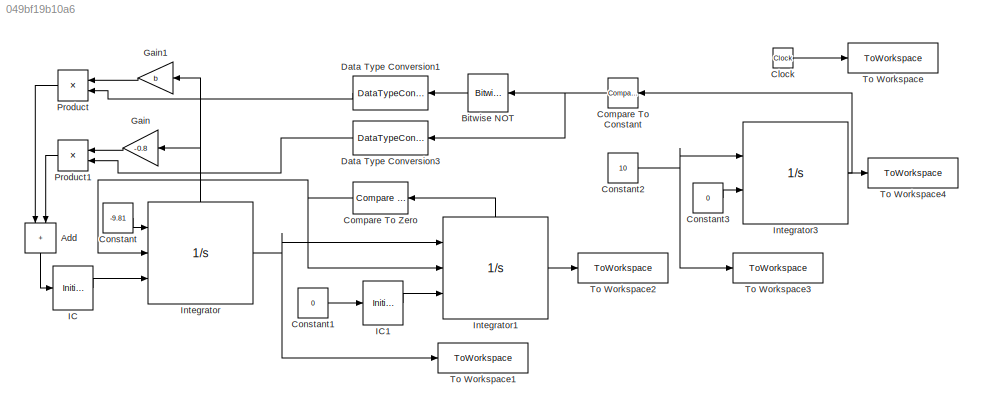
MODEL slx_049bf19b10a6
KIND model
CONFIG AbsTol = auto
CONFIG EnableMultiTasking = off
CONFIG FixedStep = auto
CONFIG MaxStep = 1e-4
CONFIG MinStep = auto
CONFIG RelTol = 1e-3
CONFIG SampleTimeConstraint = Unconstrained
CONFIG SolverName = VariableStepAuto
CONFIG StartTime = 0.0
CONFIG StopTime = 10
BLOCK [Sum] Add
  IconShape = rectangular
  NameLocation = left
  Ports = [2, 1]
BLOCK [Reference] Bitwise NOT  REF=simulink/Logic and Bit
Operations/Bitwise
Operator
  NameLocation = top
  Ports = [1, 1]
  SourceBlock = simulink/Logic and Bit\nOperations/Bitwise\nOperator
  SourceProductBaseCode = SL
  SourceType = Bitwise Operator
BLOCK [Clock] Clock
BLOCK [Reference] Compare To Constant  REF=simulink/Logic and Bit
Operations/Compare
To Constant
  NameLocation = top
  Ports = [1, 1]
  SourceBlock = simulink/Logic and Bit\nOperations/Compare\nTo Constant
  SourceProductBaseCode = SL
  SourceType = Compare To Constant
BLOCK [Reference] Compare To Zero  REF=simulink/Logic and Bit
Operations/Compare
To Zero
  NameLocation = top
  Ports = [1, 1]
  SourceBlock = simulink/Logic and Bit\nOperations/Compare\nTo Zero
  SourceProductBaseCode = SL
  SourceType = Compare To Zero
BLOCK [Constant] Constant
  AttributesFormatString = Gravidade
  Description = Gravidade
  Value = -9.81
BLOCK [Constant] Constant1
  AttributesFormatString = Pavimento
  Description = Pavimento
  Value = 0
BLOCK [Constant] Constant2
  AttributesFormatString = Velocidade inicial y
  Description = Gravidade
  OutDataTypeStr = double
  Value = 10
BLOCK [Constant] Constant3
  Description = Gravidade
  Value = 0
BLOCK [DataTypeConversion] Data Type Conversion1
  NameLocation = top
  OutDataTypeStr = double
  RndMeth = Floor
  SaturateOnIntegerOverflow = off
BLOCK [DataTypeConversion] Data Type Conversion3
  NameLocation = top
  OutDataTypeStr = double
  RndMeth = Floor
  SaturateOnIntegerOverflow = off
BLOCK [Gain] Gain
  AttributesFormatString = Elasticidade da bola
  Description = Elasticidade da bola
  Gain = -0.8
  NameLocation = top
BLOCK [Gain] Gain1
  AttributesFormatString = Elasticidade da bola
  Description = Elasticidade da bola
  Gain = b
  NameLocation = top
BLOCK [InitialCondition] IC
  AttributesFormatString = Velocidade inicial z
  Description = Velocidade inicial
  Value = 0
BLOCK [InitialCondition] IC1
  AttributesFormatString = Posição inicial z
  Description = Posição inicial
  Value = 10
BLOCK [Integrator] Integrator
  AttributesFormatString = Velocidade z
  ExternalReset = level hold
  InitialConditionSource = external
  Ports = [3, 1, 0, 0, 1]
  ShowStatePort = on
BLOCK [Integrator] Integrator1
  AttributesFormatString = Posição z
  ExternalReset = rising
  InitialConditionSource = external
  LimitOutput = on
  Ports = [3, 1, 0, 0, 1]
  ShowStatePort = on
BLOCK [Integrator] Integrator3
  AttributesFormatString = Posição y
  InitialConditionSource = external
  Ports = [2, 1]
BLOCK [Product] Product
  NameLocation = top
  Ports = [2, 1]
BLOCK [Product] Product1
  NameLocation = top
  Ports = [2, 1]
BLOCK [ToWorkspace] To Workspace
  FixptAsFi = on
  MaxDataPoints = inf
  Ports = [1]
  SampleTime = -1
  Save2DSignal = 2-D array (concatenate along first dimension)
  SaveFormat = Timeseries
  VariableName = t
BLOCK [ToWorkspace] To Workspace1
  FixptAsFi = on
  MaxDataPoints = inf
  Ports = [1]
  SampleTime = -1
  Save2DSignal = 2-D array (concatenate along first dimension)
  SaveFormat = Timeseries
  VariableName = vz
BLOCK [ToWorkspace] To Workspace2
  FixptAsFi = on
  MaxDataPoints = inf
  Ports = [1]
  SampleTime = -1
  Save2DSignal = 2-D array (concatenate along first dimension)
  SaveFormat = Timeseries
  VariableName = z
BLOCK [ToWorkspace] To Workspace3
  FixptAsFi = on
  MaxDataPoints = inf
  Ports = [1]
  SampleTime = -1
  Save2DSignal = 2-D array (concatenate along first dimension)
  SaveFormat = Timeseries
  VariableName = vy
BLOCK [ToWorkspace] To Workspace4
  FixptAsFi = on
  MaxDataPoints = inf
  Ports = [1]
  SampleTime = -1
  Save2DSignal = 2-D array (concatenate along first dimension)
  SaveFormat = Timeseries
  VariableName = y
LINE Add:1 -> IC:1
LINE Bitwise NOT:1 -> Data Type Conversion1:1
LINE Clock:1 -> To Workspace:1
NET Compare To Constant:1 -> Bitwise NOT:1, Data Type Conversion3:1
NET Compare To Zero:1 -> Integrator1:2, Integrator:2
LINE Constant1:1 -> IC1:1
NET Constant2:1 -> Integrator3:1, To Workspace3:1
LINE Constant3:1 -> Integrator3:2
LINE Constant:1 -> Integrator:1
LINE Data Type Conversion1:1 -> Product:2
LINE Data Type Conversion3:1 -> Product1:2
LINE Gain1:1 -> Product:1
LINE Gain:1 -> Product1:1
LINE IC1:1 -> Integrator1:3
LINE IC:1 -> Integrator:3
LINE Integrator1:1 -> To Workspace2:1
LINE Integrator1:state -> Compare To Zero:1
NET Integrator3:1 -> Compare To Constant:1, To Workspace4:1
NET Integrator:1 -> Integrator1:1, To Workspace1:1
NET Integrator:state -> Gain1:1, Gain:1
LINE Product1:1 -> Add:2
LINE Product:1 -> Add:1
note: NET lines group one-source signal fan-out (src -> all destinations, sorted); 1:1 wires keep LINE
